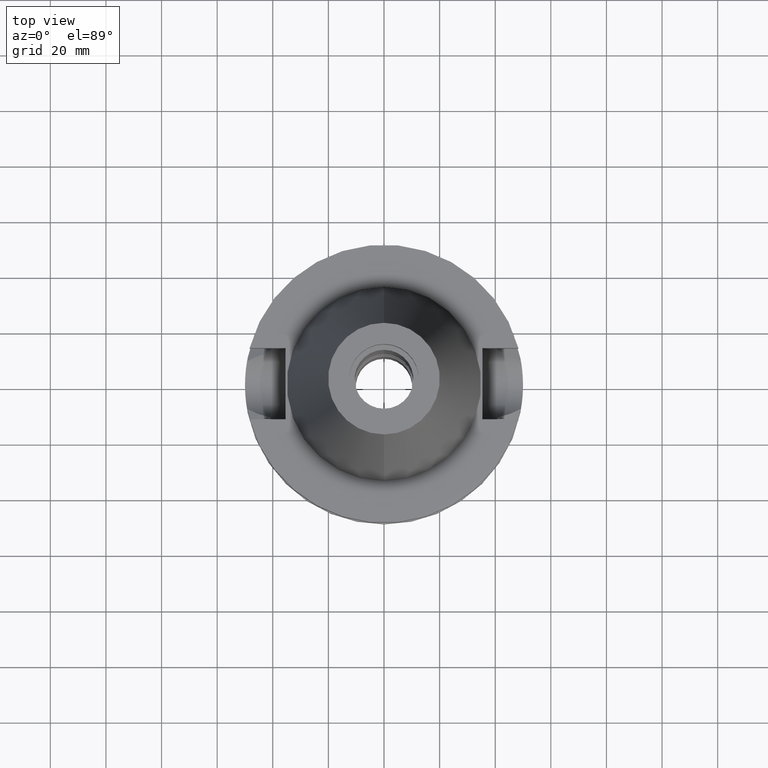
[diagram: clean part render]
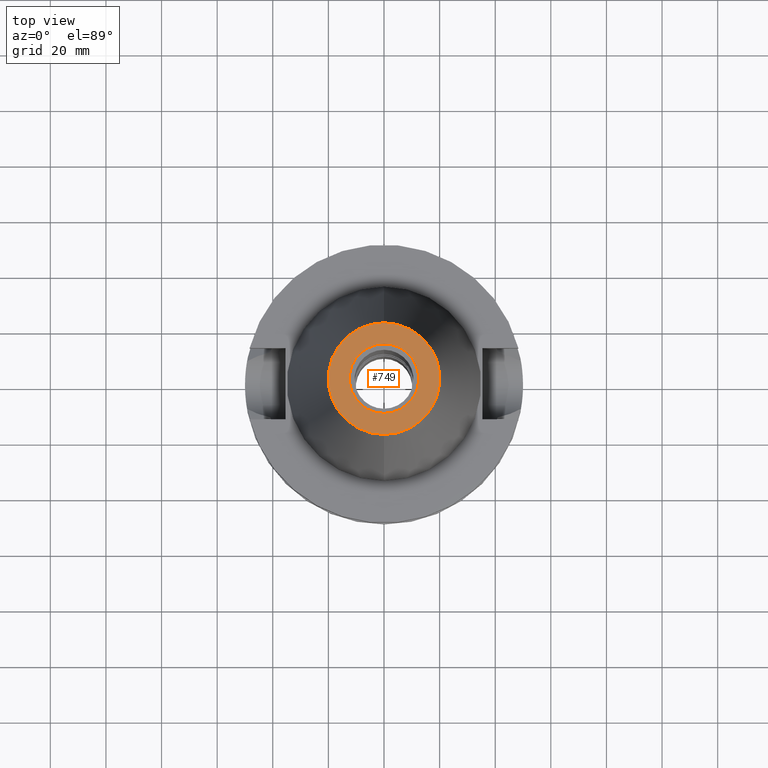
[diagram: same view with one face highlighted and labeled with its STEP entity id]
A machine part, top view. The second image highlights one B-rep face of the part: STEP entity #749.
In plain terms, the highlighted planar face has unit normal (0, 0, -1).
Its self-contained STEP definition (entity closure, byte-faithful):
#26 = DIRECTION ( 'NONE',  ( 0.0000000000000000000, 0.0000000000000000000, 1.000000000000000000 ) ) ;
#36 = CIRCLE ( 'NONE', #503, 20.07942971896000017 ) ;
#94 = DIRECTION ( 'NONE',  ( 0.0000000000000000000, 0.0000000000000000000, -1.000000000000000000 ) ) ;
#185 = EDGE_CURVE ( 'NONE', #2115, #599, #3538, .T. ) ;
#292 = DIRECTION ( 'NONE',  ( 0.0000000000000000000, 1.000000000000000000, 0.0000000000000000000 ) ) ;
#339 = EDGE_CURVE ( 'NONE', #1786, #1850, #36, .T. ) ;
#503 = AXIS2_PLACEMENT_3D ( 'NONE', #2951, #94, #2373 ) ;
#569 = DIRECTION ( 'NONE',  ( 0.0000000000000000000, 0.0000000000000000000, 1.000000000000000000 ) ) ;
#599 = VERTEX_POINT ( 'NONE', #1389 ) ;
#662 = DIRECTION ( 'NONE',  ( 0.0000000000000000000, 0.0000000000000000000, -1.000000000000000000 ) ) ;
#749 = ADVANCED_FACE ( 'NONE', ( #3501, #942 ), #2089, .F. ) ;
#800 = ORIENTED_EDGE ( 'NONE', *, *, #185, .F. ) ;
#868 = CARTESIAN_POINT ( 'NONE',  ( 0.0000000000000000000, 2.602251983507999750E-14, 101.7999999999999972 ) ) ;
#878 = CARTESIAN_POINT ( 'NONE',  ( 0.0000000000000000000, 2.602251983507999750E-14, 101.7999999999999972 ) ) ;
#942 = FACE_BOUND ( 'NONE', #3592, .T. ) ;
#1162 = CARTESIAN_POINT ( 'NONE',  ( 0.0000000000000000000, 1.847992019912999597E-14, 101.7999999999999972 ) ) ;
#1174 = EDGE_CURVE ( 'NONE', #599, #2115, #3316, .T. ) ;
#1183 = EDGE_CURVE ( 'NONE', #1850, #1786, #2720, .T. ) ;
#1192 = DIRECTION ( 'NONE',  ( 0.0000000000000000000, -1.000000000000000000, 0.0000000000000000000 ) ) ;
#1389 = CARTESIAN_POINT ( 'NONE',  ( 0.0000000000000000000, 12.50000000000000000, 101.7999999999999972 ) ) ;
#1444 = ORIENTED_EDGE ( 'NONE', *, *, #1174, .F. ) ;
#1477 = EDGE_LOOP ( 'NONE', ( #3187, #2919 ) ) ;
#1572 = AXIS2_PLACEMENT_3D ( 'NONE', #1162, #3444, #292 ) ;
#1754 = AXIS2_PLACEMENT_3D ( 'NONE', #868, #569, #2869 ) ;
#1786 = VERTEX_POINT ( 'NONE', #1978 ) ;
#1794 = DIRECTION ( 'NONE',  ( 0.0000000000000000000, -1.000000000000000000, 0.0000000000000000000 ) ) ;
#1809 = AXIS2_PLACEMENT_3D ( 'NONE', #3225, #662, #1794 ) ;
#1850 = VERTEX_POINT ( 'NONE', #2884 ) ;
#1861 = CARTESIAN_POINT ( 'NONE',  ( 0.0000000000000000000, -12.50000000000000000, 101.7999999999999972 ) ) ;
#1978 = CARTESIAN_POINT ( 'NONE',  ( 0.0000000000000000000, -20.07942971896000017, 101.7999999999999972 ) ) ;
#2089 = PLANE ( 'NONE',  #1809 ) ;
#2115 = VERTEX_POINT ( 'NONE', #1861 ) ;
#2373 = DIRECTION ( 'NONE',  ( 0.0000000000000000000, -1.000000000000000000, 0.0000000000000000000 ) ) ;
#2413 = AXIS2_PLACEMENT_3D ( 'NONE', #878, #26, #1192 ) ;
#2720 = CIRCLE ( 'NONE', #1572, 20.07942971896000017 ) ;
#2869 = DIRECTION ( 'NONE',  ( 0.0000000000000000000, 1.000000000000000000, 0.0000000000000000000 ) ) ;
#2884 = CARTESIAN_POINT ( 'NONE',  ( 0.0000000000000000000, 20.07942971896000017, 101.7999999999999972 ) ) ;
#2919 = ORIENTED_EDGE ( 'NONE', *, *, #339, .F. ) ;
#2951 = CARTESIAN_POINT ( 'NONE',  ( 0.0000000000000000000, 1.847992019912999597E-14, 101.7999999999999972 ) ) ;
#3187 = ORIENTED_EDGE ( 'NONE', *, *, #1183, .F. ) ;
#3225 = CARTESIAN_POINT ( 'NONE',  ( 0.0000000000000000000, 2.471337240678999545E-14, 101.7999999999999972 ) ) ;
#3316 = CIRCLE ( 'NONE', #1754, 12.50000000000000000 ) ;
#3444 = DIRECTION ( 'NONE',  ( 0.0000000000000000000, 0.0000000000000000000, -1.000000000000000000 ) ) ;
#3501 = FACE_OUTER_BOUND ( 'NONE', #1477, .T. ) ;
#3538 = CIRCLE ( 'NONE', #2413, 12.50000000000000000 ) ;
#3592 = EDGE_LOOP ( 'NONE', ( #1444, #800 ) ) ;